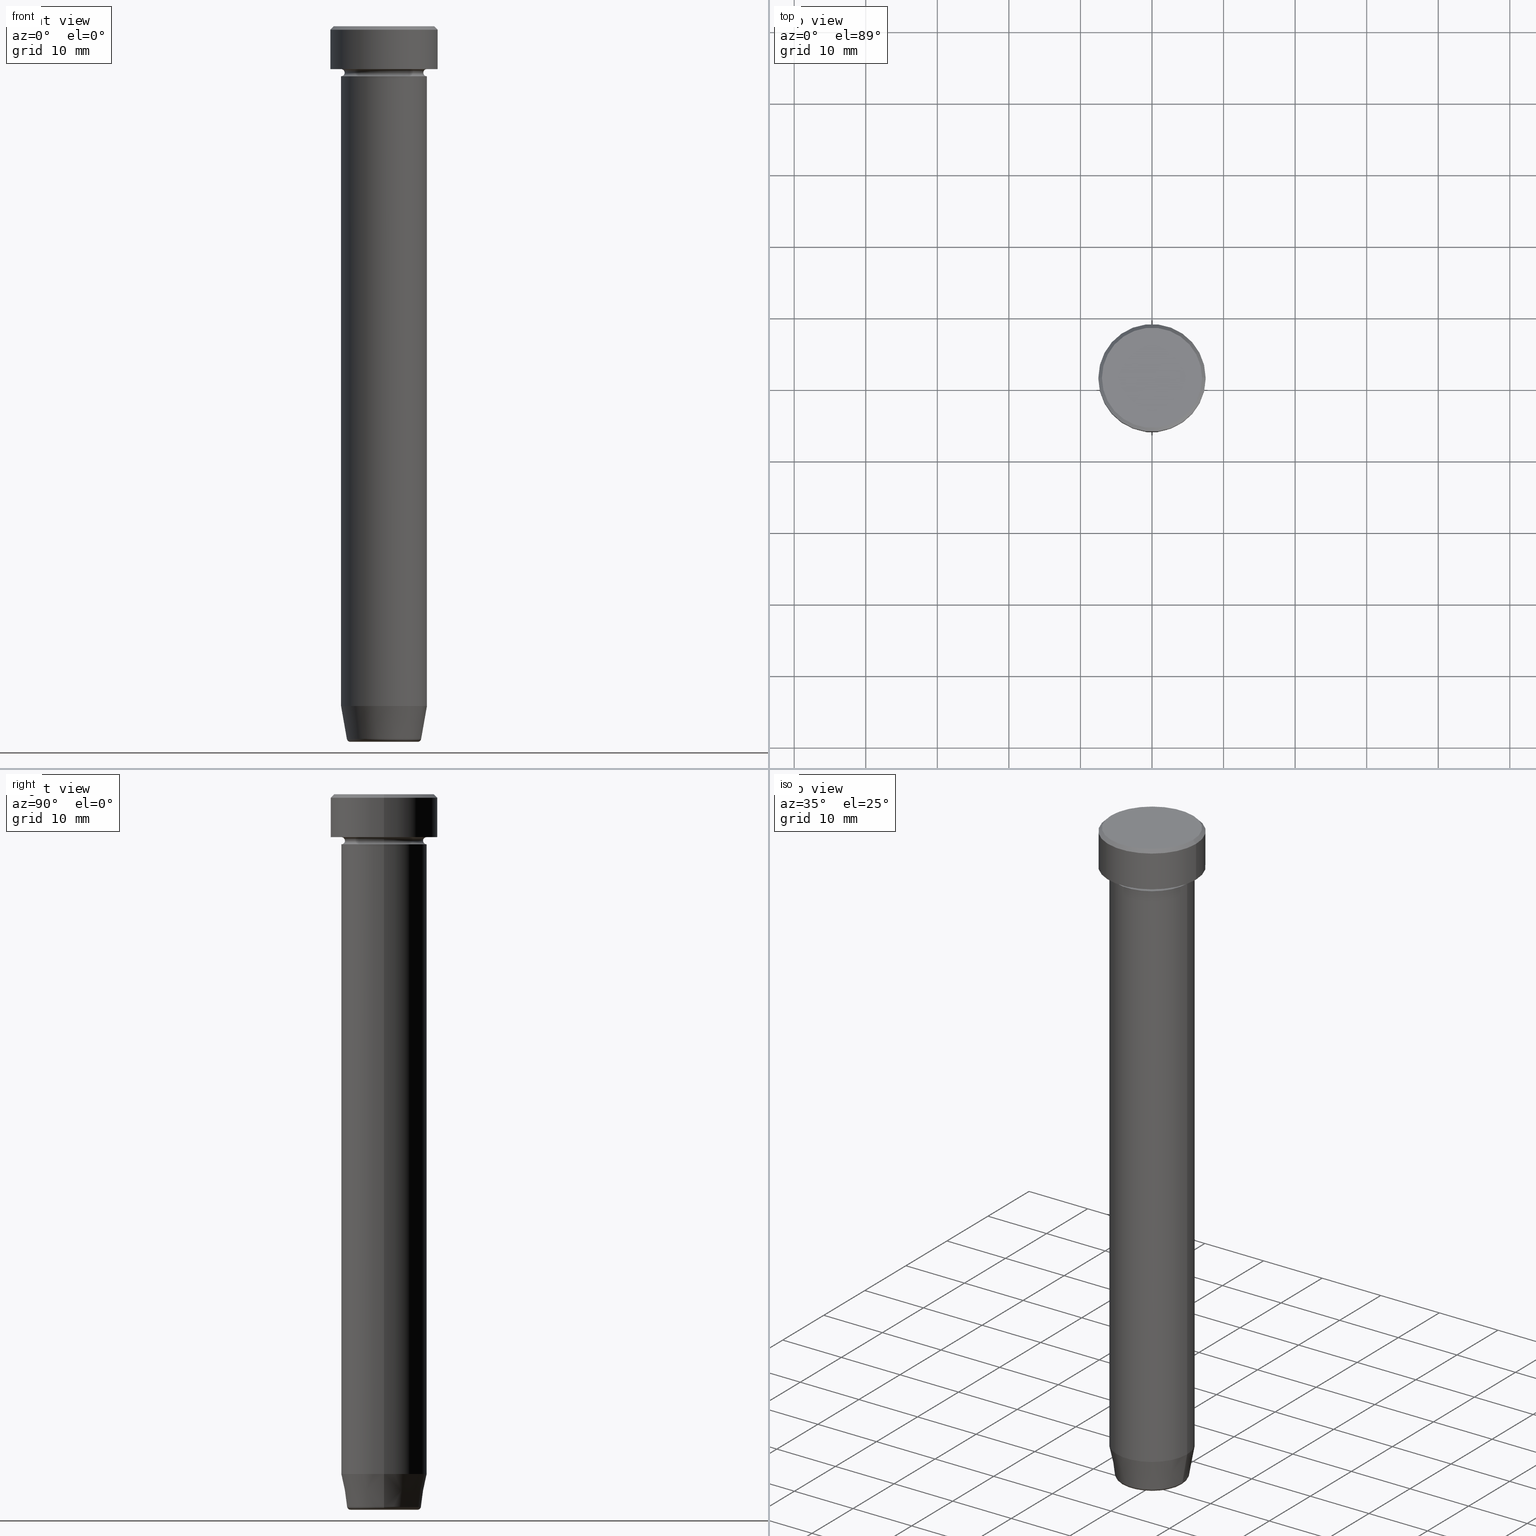
[diagram: canonical four-view strip — front | top / right | iso, engineering-drawing reading convention]
A machine part, canonical four-view strip (front | top / right | iso — engineering-drawing reading convention). The complete STEP part file that produces these views, byte-faithful:
ISO-10303-21;
HEADER;
FILE_DESCRIPTION (( 'STEP AP203' ),
    '1' );
FILE_NAME ('85c9.STEP',
    '2024-01-03T00:07:37',
    ( '' ),
    ( '' ),
    'SwSTEP 2.0',
    'SolidWorks 2019',
    '' );
FILE_SCHEMA (( 'CONFIG_CONTROL_DESIGN' ));
ENDSEC;

DATA;
#1 = AXIS2_PLACEMENT_3D ( 'NONE', #332, #514, #58 ) ;
#2 = FACE_BOUND ( 'NONE', #538, .T. ) ;
#3 = CIRCLE ( 'NONE', #210, 7.500000000000000000 ) ;
#4 = DIRECTION ( 'NONE',  ( 1.000000000000000000, 0.000000000000000000, 0.000000000000000000 ) ) ;
#5 = EDGE_CURVE ( 'NONE', #371, #503, #298, .T. ) ;
#6 = CARTESIAN_POINT ( 'NONE',  ( -4.698815280869031774, 6.055899509126404334E-16, -100.0000000000000000 ) ) ;
#7 = DIRECTION ( 'NONE',  ( -1.000000000000000000, 0.000000000000000000, 0.000000000000000000 ) ) ;
#8 = DIRECTION ( 'NONE',  ( -0.000000000000000000, -0.000000000000000000, 1.000000000000000000 ) ) ;
#9 = DIRECTION ( 'NONE',  ( -0.000000000000000000, -0.000000000000000000, 1.000000000000000000 ) ) ;
#10 = CARTESIAN_POINT ( 'NONE',  ( 0.000000000000000000, 0.000000000000000000, -100.0000000000000000 ) ) ;
#11 = DIRECTION ( 'NONE',  ( -0.000000000000000000, -0.000000000000000000, 1.000000000000000000 ) ) ;
#12 = CIRCLE ( 'NONE', #229, 6.000000000000000000 ) ;
#13 = PERSON_AND_ORGANIZATION ( #454, #110 ) ;
#14 = CARTESIAN_POINT ( 'NONE',  ( -7.500000000000000000, 9.184850993605147944E-16, -0.4999999999999987232 ) ) ;
#15 = APPROVAL ( #530, 'NEUR�EN�' ) ;
#16 = COORDINATED_UNIVERSAL_TIME_OFFSET ( 1, 0, .AHEAD. ) ;
#17 = CARTESIAN_POINT ( 'NONE',  ( 6.000000000000000000, 0.000000000000000000, -95.00000000000000000 ) ) ;
#18 = EDGE_CURVE ( 'NONE', #101, #222, #12, .T. ) ;
#19 = CONICAL_SURFACE ( 'NONE', #336, 5.118365096457672792, 0.1745329251994331976 ) ;
#20 = CARTESIAN_POINT ( 'NONE',  ( 0.000000000000000000, 0.000000000000000000, 0.000000000000000000 ) ) ;
#21 = CC_DESIGN_APPROVAL ( #269, ( #417 ) ) ;
#22 = CIRCLE ( 'NONE', #563, 6.000000000000000000 ) ;
#23 = ORIENTED_EDGE ( 'NONE', *, *, #424, .T. ) ;
#24 = CIRCLE ( 'NONE', #280, 5.191219157375138060 ) ;
#25 = COORDINATED_UNIVERSAL_TIME_OFFSET ( 1, 0, .AHEAD. ) ;
#26 = CARTESIAN_POINT ( 'NONE',  ( 0.000000000000000000, 0.000000000000000000, -7.000000000000000000 ) ) ;
#27 = ORIENTED_EDGE ( 'NONE', *, *, #250, .F. ) ;
#28 = PERSON_AND_ORGANIZATION ( #454, #110 ) ;
#29 = DIRECTION ( 'NONE',  ( -0.000000000000000000, -0.000000000000000000, 1.000000000000000000 ) ) ;
#30 = ORIENTED_EDGE ( 'NONE', *, *, #281, .T. ) ;
#31 = SHAPE_DEFINITION_REPRESENTATION ( #302, #351 ) ;
#32 = CARTESIAN_POINT ( 'NONE',  ( 4.698815280869031774, 0.000000000000000000, -100.0000000000000000 ) ) ;
#33 = VERTEX_POINT ( 'NONE', #428 ) ;
#34 = CLOSED_SHELL ( 'NONE', ( #331, #373, #501, #247, #427, #394, #590, #162, #464, #61, #403, #400, #470 ) ) ;
#35 = CIRCLE ( 'NONE', #498, 7.500000000000000000 ) ;
#36 = CARTESIAN_POINT ( 'NONE',  ( -6.000000000000000000, 7.347880794884119736E-16, 0.000000000000000000 ) ) ;
#37 = ORIENTED_EDGE ( 'NONE', *, *, #116, .T. ) ;
#38 = EDGE_CURVE ( 'NONE', #503, #371, #521, .T. ) ;
#39 = LINE ( 'NONE', #36, #235 ) ;
#40 = ORIENTED_EDGE ( 'NONE', *, *, #102, .T. ) ;
#41 = DIRECTION ( 'NONE',  ( -1.000000000000000000, 0.000000000000000000, 0.000000000000000000 ) ) ;
#42 = ORIENTED_EDGE ( 'NONE', *, *, #505, .T. ) ;
#43 = AXIS2_PLACEMENT_3D ( 'NONE', #261, #29, #528 ) ;
#44 = ADVANCED_FACE ( 'NONE', ( #246 ), #278, .F. ) ;
#45 = CYLINDRICAL_SURFACE ( 'NONE', #522, 7.500000000000000000 ) ;
#46 = ORIENTED_EDGE ( 'NONE', *, *, #38, .F. ) ;
#47 = FACE_OUTER_BOUND ( 'NONE', #597, .T. ) ;
#48 = ORIENTED_EDGE ( 'NONE', *, *, #71, .F. ) ;
#49 = DIRECTION ( 'NONE',  ( -0.000000000000000000, -0.000000000000000000, 1.000000000000000000 ) ) ;
#50 = VERTEX_POINT ( 'NONE', #62 ) ;
#51 = AXIS2_PLACEMENT_3D ( 'NONE', #586, #133, #128 ) ;
#52 = AXIS2_PLACEMENT_3D ( 'NONE', #242, #231, #412 ) ;
#53 = AXIS2_PLACEMENT_3D ( 'NONE', #80, #69, #74 ) ;
#54 = CARTESIAN_POINT ( 'NONE',  ( 6.000000000000000000, 0.000000000000000000, -17.00000000000000000 ) ) ;
#55 = CIRCLE ( 'NONE', #397, 7.000000000000001776 ) ;
#56 = CARTESIAN_POINT ( 'NONE',  ( 0.000000000000000000, 0.000000000000000000, -17.00000000000000000 ) ) ;
#57 = CC_DESIGN_DATE_AND_TIME_ASSIGNMENT ( #491, #77, ( #571 ) ) ;
#58 = DIRECTION ( 'NONE',  ( 1.000000000000000000, 0.000000000000000000, 0.000000000000000000 ) ) ;
#59 = CARTESIAN_POINT ( 'NONE',  ( 7.000000000000001776, 8.878689293818310074E-16, 0.000000000000000000 ) ) ;
#60 = DIRECTION ( 'NONE',  ( -0.000000000000000000, -0.000000000000000000, 1.000000000000000000 ) ) ;
#61 = ADVANCED_FACE ( 'NONE', ( #158 ), #557, .T. ) ;
#62 = CARTESIAN_POINT ( 'NONE',  ( 5.191219157375138060, 0.000000000000000000, -99.58682408883346682 ) ) ;
#63 = CIRCLE ( 'NONE', #320, 5.191219157375138060 ) ;
#64 = VERTEX_POINT ( 'NONE', #515 ) ;
#65 = AXIS2_PLACEMENT_3D ( 'NONE', #175, #273, #185 ) ;
#66 = APPROVAL_DATE_TIME ( #68, #15 ) ;
#67 = DIRECTION ( 'NONE',  ( 1.000000000000000000, 0.000000000000000000, 0.000000000000000000 ) ) ;
#68 = DATE_AND_TIME ( #479, #85 ) ;
#69 = DIRECTION ( 'NONE',  ( 0.000000000000000000, 0.000000000000000000, -1.000000000000000000 ) ) ;
#70 = VERTEX_POINT ( 'NONE', #95 ) ;
#71 = EDGE_CURVE ( 'NONE', #50, #461, #63, .T. ) ;
#72 = CALENDAR_DATE ( 2024, 3, 1 ) ;
#73 = AXIS2_PLACEMENT_3D ( 'NONE', #426, #199, #100 ) ;
#74 = DIRECTION ( 'NONE',  ( 1.000000000000000000, 0.000000000000000000, 0.000000000000000000 ) ) ;
#75 =( GEOMETRIC_REPRESENTATION_CONTEXT ( 3 ) GLOBAL_UNCERTAINTY_ASSIGNED_CONTEXT ( ( #145 ) ) GLOBAL_UNIT_ASSIGNED_CONTEXT ( ( #289, #208, #475 ) ) REPRESENTATION_CONTEXT ( 'NONE', 'WORKASPACE' ) );
#76 = EDGE_LOOP ( 'NONE', ( #572, #40 ) ) ;
#77 = DATE_TIME_ROLE ( 'classification_date' ) ;
#78 = CARTESIAN_POINT ( 'NONE',  ( 0.000000000000000000, 0.000000000000000000, 0.000000000000000000 ) ) ;
#79 = ORIENTED_EDGE ( 'NONE', *, *, #155, .F. ) ;
#80 = CARTESIAN_POINT ( 'NONE',  ( 0.000000000000000000, 0.000000000000000000, -0.4999999999999987232 ) ) ;
#81 = ORIENTED_EDGE ( 'NONE', *, *, #505, .F. ) ;
#82 = DIRECTION ( 'NONE',  ( 0.000000000000000000, 0.000000000000000000, -1.000000000000000000 ) ) ;
#83 = TOROIDAL_SURFACE ( 'NONE', #469, 6.000000000000000000, 0.5000000000000000000 ) ;
#84 = EDGE_LOOP ( 'NONE', ( #376, #529, #526, #120 ) ) ;
#85 = LOCAL_TIME ( 1, 7, 37.00000000000000000, #339 ) ;
#86 = AXIS2_PLACEMENT_3D ( 'NONE', #143, #460, #149 ) ;
#87 = DIRECTION ( 'NONE',  ( -0.000000000000000000, -0.000000000000000000, 1.000000000000000000 ) ) ;
#88 = ORIENTED_EDGE ( 'NONE', *, *, #165, .T. ) ;
#89 = DIRECTION ( 'NONE',  ( -1.000000000000000000, 0.000000000000000000, 0.000000000000000000 ) ) ;
#90 = ORIENTED_EDGE ( 'NONE', *, *, #71, .T. ) ;
#91 = FACE_OUTER_BOUND ( 'NONE', #200, .T. ) ;
#92 = ORIENTED_EDGE ( 'NONE', *, *, #5, .T. ) ;
#93 = ORIENTED_EDGE ( 'NONE', *, *, #189, .T. ) ;
#94 = CARTESIAN_POINT ( 'NONE',  ( 6.000000000000000000, 0.000000000000000000, -17.00000000000000000 ) ) ;
#95 = CARTESIAN_POINT ( 'NONE',  ( -6.000000000000000000, 7.347880794884119736E-16, -95.00000000000000000 ) ) ;
#96 = DIRECTION ( 'NONE',  ( 1.000000000000000000, 0.000000000000000000, 0.000000000000000000 ) ) ;
#97 = ORIENTED_EDGE ( 'NONE', *, *, #490, .F. ) ;
#98 = CONICAL_SURFACE ( 'NONE', #438, 5.118365096457672792, 0.1745329251994331976 ) ;
#99 = AXIS2_PLACEMENT_3D ( 'NONE', #483, #212, #334 ) ;
#100 = DIRECTION ( 'NONE',  ( 1.000000000000000000, 0.000000000000000000, 0.000000000000000000 ) ) ;
#101 = VERTEX_POINT ( 'NONE', #287 ) ;
#102 = EDGE_CURVE ( 'NONE', #589, #485, #198, .T. ) ;
#103 = CARTESIAN_POINT ( 'NONE',  ( -6.000000000000000000, 7.347880794884119736E-16, -6.500000000000000888 ) ) ;
#104 = CARTESIAN_POINT ( 'NONE',  ( 0.000000000000000000, 0.000000000000000000, -17.00000000000000000 ) ) ;
#105 = CC_DESIGN_DATE_AND_TIME_ASSIGNMENT ( #251, #202, ( #216 ) ) ;
#106 = DIRECTION ( 'NONE',  ( 0.000000000000000000, -1.000000000000000000, 0.000000000000000000 ) ) ;
#107 = ORIENTED_EDGE ( 'NONE', *, *, #595, .F. ) ;
#108 = ORIENTED_EDGE ( 'NONE', *, *, #490, .T. ) ;
#109 = TOROIDAL_SURFACE ( 'NONE', #311, 6.000000000000000000, 0.5000000000000000000 ) ;
#110 = ORGANIZATION ( 'NEUR�EN�', 'NEUR�EN�', '' ) ;
#111 = AXIS2_PLACEMENT_3D ( 'NONE', #345, #169, #252 ) ;
#112 = CYLINDRICAL_SURFACE ( 'NONE', #543, 6.000000000000000000 ) ;
#113 = CIRCLE ( 'NONE', #51, 6.000000000000000000 ) ;
#114 = PERSON_AND_ORGANIZATION ( #454, #110 ) ;
#115 = CARTESIAN_POINT ( 'NONE',  ( 7.500000000000000000, 0.000000000000000000, -0.4999999999999987232 ) ) ;
#116 = EDGE_CURVE ( 'NONE', #70, #589, #187, .T. ) ;
#117 = ORIENTED_EDGE ( 'NONE', *, *, #293, .T. ) ;
#118 = PERSON_AND_ORGANIZATION ( #454, #110 ) ;
#119 = DIRECTION ( 'NONE',  ( -0.000000000000000000, -0.000000000000000000, 1.000000000000000000 ) ) ;
#120 = ORIENTED_EDGE ( 'NONE', *, *, #129, .F. ) ;
#121 = SECURITY_CLASSIFICATION_LEVEL ( 'unclassified' ) ;
#122 = DIRECTION ( 'NONE',  ( -0.1736481776669306087, 2.126576849575774688E-17, 0.9848077530122081313 ) ) ;
#123 = ORIENTED_EDGE ( 'NONE', *, *, #579, .F. ) ;
#124 = ADVANCED_FACE ( 'NONE', ( #240 ), #560, .F. ) ;
#125 = LINE ( 'NONE', #575, #182 ) ;
#126 = DIRECTION ( 'NONE',  ( -0.000000000000000000, -0.000000000000000000, 1.000000000000000000 ) ) ;
#127 = ORIENTED_EDGE ( 'NONE', *, *, #384, .F. ) ;
#128 = DIRECTION ( 'NONE',  ( 1.000000000000000000, 0.000000000000000000, 0.000000000000000000 ) ) ;
#129 = EDGE_CURVE ( 'NONE', #549, #583, #284, .T. ) ;
#130 = ORIENTED_EDGE ( 'NONE', *, *, #165, .F. ) ;
#131 = AXIS2_PLACEMENT_3D ( 'NONE', #555, #562, #366 ) ;
#132 = AXIS2_PLACEMENT_3D ( 'NONE', #548, #135, #504 ) ;
#133 = DIRECTION ( 'NONE',  ( -0.000000000000000000, -0.000000000000000000, 1.000000000000000000 ) ) ;
#134 = VERTEX_POINT ( 'NONE', #59 ) ;
#135 = DIRECTION ( 'NONE',  ( -0.000000000000000000, -0.000000000000000000, 1.000000000000000000 ) ) ;
#136 = ORIENTED_EDGE ( 'NONE', *, *, #442, .T. ) ;
#137 = CARTESIAN_POINT ( 'NONE',  ( 0.000000000000000000, 0.000000000000000000, -6.000000000000000000 ) ) ;
#138 = ORIENTED_EDGE ( 'NONE', *, *, #442, .F. ) ;
#139 = LOCAL_TIME ( 1, 7, 37.00000000000000000, #25 ) ;
#140 = CIRCLE ( 'NONE', #43, 6.000000000000000000 ) ;
#141 = TOROIDAL_SURFACE ( 'NONE', #288, 6.000000000000000000, 0.5000000000000000000 ) ;
#142 = EDGE_CURVE ( 'NONE', #296, #197, #474, .T. ) ;
#143 = CARTESIAN_POINT ( 'NONE',  ( 0.000000000000000000, 0.000000000000000000, 0.000000000000000000 ) ) ;
#144 = DIRECTION ( 'NONE',  ( 1.000000000000000000, 0.000000000000000000, 0.000000000000000000 ) ) ;
#145 = UNCERTAINTY_MEASURE_WITH_UNIT (LENGTH_MEASURE( 1.000000000000000082E-05 ), #289, 'distance_accuracy_value', 'NONE');
#146 = EDGE_CURVE ( 'NONE', #300, #50, #429, .T. ) ;
#147 = CARTESIAN_POINT ( 'NONE',  ( 0.000000000000000000, 0.000000000000000000, -100.0000000000000000 ) ) ;
#148 = DIRECTION ( 'NONE',  ( -0.000000000000000000, -0.000000000000000000, 1.000000000000000000 ) ) ;
#149 = DIRECTION ( 'NONE',  ( -1.000000000000000000, 0.000000000000000000, 0.000000000000000000 ) ) ;
#150 = ORIENTED_EDGE ( 'NONE', *, *, #142, .F. ) ;
#151 = APPROVAL_PERSON_ORGANIZATION ( #13, #15, #377 ) ;
#152 = CIRCLE ( 'NONE', #53, 7.500000000000000000 ) ;
#153 = DIRECTION ( 'NONE',  ( 1.000000000000000000, 0.000000000000000000, 0.000000000000000000 ) ) ;
#154 = DIRECTION ( 'NONE',  ( -0.000000000000000000, -0.000000000000000000, 1.000000000000000000 ) ) ;
#155 = EDGE_CURVE ( 'NONE', #64, #220, #125, .T. ) ;
#156 = CARTESIAN_POINT ( 'NONE',  ( 0.000000000000000000, 0.000000000000000000, -99.50000000000000000 ) ) ;
#157 = MANIFOLD_SOLID_BREP ( 'Zkosen�1', #34 ) ;
#158 = FACE_OUTER_BOUND ( 'NONE', #204, .T. ) ;
#159 = DIRECTION ( 'NONE',  ( -0.000000000000000000, -0.000000000000000000, 1.000000000000000000 ) ) ;
#160 = AXIS2_PLACEMENT_3D ( 'NONE', #362, #465, #370 ) ;
#161 = PERSON_AND_ORGANIZATION ( #454, #110 ) ;
#162 = ADVANCED_FACE ( 'NONE', ( #535 ), #291, .T. ) ;
#163 = DIRECTION ( 'NONE',  ( -1.000000000000000000, -1.224646799147351482E-16, 0.000000000000000000 ) ) ;
#164 = AXIS2_PLACEMENT_3D ( 'NONE', #249, #166, #203 ) ;
#165 = EDGE_CURVE ( 'NONE', #197, #220, #152, .T. ) ;
#166 = DIRECTION ( 'NONE',  ( -0.000000000000000000, -0.000000000000000000, 1.000000000000000000 ) ) ;
#167 = APPROVAL_DATE_TIME ( #435, #269 ) ;
#168 = MANIFOLD_SOLID_BREP ( 'Zaoblit4', #237 ) ;
#169 = DIRECTION ( 'NONE',  ( 0.000000000000000000, -1.000000000000000000, 0.000000000000000000 ) ) ;
#170 = EDGE_CURVE ( 'NONE', #358, #549, #489, .T. ) ;
#171 = PERSON_AND_ORGANIZATION ( #454, #110 ) ;
#172 = CARTESIAN_POINT ( 'NONE',  ( -7.500000000000000000, 9.184850993605147944E-16, -6.000000000000000000 ) ) ;
#173 = VECTOR ( 'NONE', #301, 1000.000000000000000 ) ;
#174 = EDGE_CURVE ( 'NONE', #184, #70, #140, .T. ) ;
#175 = CARTESIAN_POINT ( 'NONE',  ( 0.000000000000000000, 0.000000000000000000, -100.0000000000000000 ) ) ;
#176 = ORIENTED_EDGE ( 'NONE', *, *, #116, .F. ) ;
#177 = DIRECTION ( 'NONE',  ( -0.000000000000000000, -1.000000000000000000, -0.000000000000000000 ) ) ;
#178 = ORIENTED_EDGE ( 'NONE', *, *, #18, .T. ) ;
#179 = CARTESIAN_POINT ( 'NONE',  ( 0.000000000000000000, 0.000000000000000000, 0.000000000000000000 ) ) ;
#180 = AXIS2_PLACEMENT_3D ( 'NONE', #195, #421, #193 ) ;
#181 = ORIENTED_EDGE ( 'NONE', *, *, #304, .F. ) ;
#182 = VECTOR ( 'NONE', #292, 1000.000000000000114 ) ;
#183 = DIRECTION ( 'NONE',  ( 1.000000000000000000, 0.000000000000000000, 0.000000000000000000 ) ) ;
#184 = VERTEX_POINT ( 'NONE', #17 ) ;
#185 = DIRECTION ( 'NONE',  ( 1.000000000000000000, 0.000000000000000000, 0.000000000000000000 ) ) ;
#186 = DIRECTION ( 'NONE',  ( 1.224646799147353207E-16, 1.000000000000000000, 0.000000000000000000 ) ) ;
#187 = LINE ( 'NONE', #418, #584 ) ;
#188 = VECTOR ( 'NONE', #511, 999.9999999999998863 ) ;
#189 = EDGE_CURVE ( 'NONE', #225, #220, #380, .T. ) ;
#190 = AXIS2_PLACEMENT_3D ( 'NONE', #179, #594, #183 ) ;
#191 = FACE_OUTER_BOUND ( 'NONE', #488, .T. ) ;
#192 = ORIENTED_EDGE ( 'NONE', *, *, #206, .F. ) ;
#193 = DIRECTION ( 'NONE',  ( 1.000000000000000000, 0.000000000000000000, 0.000000000000000000 ) ) ;
#194 = CARTESIAN_POINT ( 'NONE',  ( 0.000000000000000000, 0.000000000000000000, -99.58682408883346682 ) ) ;
#195 = CARTESIAN_POINT ( 'NONE',  ( 0.000000000000000000, 0.000000000000000000, -99.50000000000000000 ) ) ;
#196 = EDGE_CURVE ( 'NONE', #444, #461, #478, .T. ) ;
#197 = VERTEX_POINT ( 'NONE', #115 ) ;
#198 = CIRCLE ( 'NONE', #264, 6.000000000000000000 ) ;
#199 = DIRECTION ( 'NONE',  ( -0.000000000000000000, -0.000000000000000000, 1.000000000000000000 ) ) ;
#200 = EDGE_LOOP ( 'NONE', ( #596, #93, #136, #150 ) ) ;
#201 = FACE_OUTER_BOUND ( 'NONE', #274, .T. ) ;
#202 = DATE_TIME_ROLE ( 'creation_date' ) ;
#203 = DIRECTION ( 'NONE',  ( 1.000000000000000000, 0.000000000000000000, 0.000000000000000000 ) ) ;
#204 = EDGE_LOOP ( 'NONE', ( #181, #536, #268, #123 ) ) ;
#205 = CIRCLE ( 'NONE', #519, 0.5000000000000004441 ) ;
#206 = EDGE_CURVE ( 'NONE', #461, #70, #520, .T. ) ;
#207 = APPROVAL_PERSON_ORGANIZATION ( #387, #269, #574 ) ;
#208 =( NAMED_UNIT ( * ) PLANE_ANGLE_UNIT ( ) SI_UNIT ( $, .RADIAN. ) );
#209 = DIRECTION ( 'NONE',  ( 1.000000000000000000, 0.000000000000000000, 0.000000000000000000 ) ) ;
#210 = AXIS2_PLACEMENT_3D ( 'NONE', #423, #553, #564 ) ;
#211 = ORIENTED_EDGE ( 'NONE', *, *, #146, .T. ) ;
#212 = DIRECTION ( 'NONE',  ( 0.000000000000000000, 0.000000000000000000, 1.000000000000000000 ) ) ;
#213 = CARTESIAN_POINT ( 'NONE',  ( 0.000000000000000000, 0.000000000000000000, -99.58682408883346682 ) ) ;
#214 = APPROVAL_STATUS ( 'not_yet_approved' ) ;
#215 = DIRECTION ( 'NONE',  ( 1.000000000000000000, 0.000000000000000000, 0.000000000000000000 ) ) ;
#216 = PRODUCT_DEFINITION ( 'NEZN�M�', '', #417, #457 ) ;
#217 = DATE_AND_TIME ( #445, #256 ) ;
#218 = DIRECTION ( 'NONE',  ( -1.000000000000000000, 0.000000000000000000, 0.000000000000000000 ) ) ;
#219 = CONICAL_SURFACE ( 'NONE', #86, 7.000000000000001776, 0.7853981633974473908 ) ;
#220 = VERTEX_POINT ( 'NONE', #14 ) ;
#221 = CARTESIAN_POINT ( 'NONE',  ( 0.000000000000000000, 0.000000000000000000, -6.500000000000000888 ) ) ;
#222 = VERTEX_POINT ( 'NONE', #494 ) ;
#223 = ADVANCED_FACE ( 'NONE', ( #341 ), #112, .T. ) ;
#224 = CARTESIAN_POINT ( 'NONE',  ( 0.000000000000000000, 6.000000000000000000, -17.00000000000000000 ) ) ;
#225 = VERTEX_POINT ( 'NONE', #172 ) ;
#226 = ADVANCED_FACE ( 'NONE', ( #201 ), #378, .T. ) ;
#227 = DIRECTION ( 'NONE',  ( -0.000000000000000000, -0.000000000000000000, 1.000000000000000000 ) ) ;
#228 = ORIENTED_EDGE ( 'NONE', *, *, #290, .F. ) ;
#229 = AXIS2_PLACEMENT_3D ( 'NONE', #565, #279, #7 ) ;
#230 = FACE_OUTER_BOUND ( 'NONE', #399, .T. ) ;
#231 = DIRECTION ( 'NONE',  ( 0.000000000000000000, -0.000000000000000000, 1.000000000000000000 ) ) ;
#232 = EDGE_LOOP ( 'NONE', ( #271, #42, #138, #79 ) ) ;
#233 = CARTESIAN_POINT ( 'NONE',  ( 7.000000000000001776, 8.572527594031474176E-16, 0.000000000000000000 ) ) ;
#234 = CARTESIAN_POINT ( 'NONE',  ( 0.000000000000000000, 0.000000000000000000, 0.000000000000000000 ) ) ;
#235 = VECTOR ( 'NONE', #545, 1000.000000000000000 ) ;
#236 = CC_DESIGN_APPROVAL ( #15, ( #216 ) ) ;
#237 = CLOSED_SHELL ( 'NONE', ( #481, #524, #223, #124, #226, #550, #44, #566 ) ) ;
#238 = AXIS2_PLACEMENT_3D ( 'NONE', #410, #506, #41 ) ;
#239 = LINE ( 'NONE', #233, #382 ) ;
#240 = FACE_OUTER_BOUND ( 'NONE', #76, .T. ) ;
#241 = EDGE_CURVE ( 'NONE', #583, #33, #22, .T. ) ;
#242 = CARTESIAN_POINT ( 'NONE',  ( 0.000000000000000000, 0.000000000000000000, 0.000000000000000000 ) ) ;
#243 = ORIENTED_EDGE ( 'NONE', *, *, #142, .T. ) ;
#244 = DIRECTION ( 'NONE',  ( -1.000000000000000000, 1.224646799147351482E-16, 0.000000000000000000 ) ) ;
#245 = CARTESIAN_POINT ( 'NONE',  ( 7.500000000000000000, 0.000000000000000000, 0.000000000000000000 ) ) ;
#246 = FACE_OUTER_BOUND ( 'NONE', #451, .T. ) ;
#247 = ADVANCED_FACE ( 'NONE', ( #260 ), #440, .T. ) ;
#248 = PERSON_AND_ORGANIZATION_ROLE ( 'design_owner' ) ;
#249 = CARTESIAN_POINT ( 'NONE',  ( 0.000000000000000000, 0.000000000000000000, -17.00000000000000000 ) ) ;
#250 = EDGE_CURVE ( 'NONE', #549, #358, #593, .T. ) ;
#251 = DATE_AND_TIME ( #72, #372 ) ;
#252 = DIRECTION ( 'NONE',  ( 0.000000000000000000, 0.000000000000000000, -1.000000000000000000 ) ) ;
#253 = EDGE_LOOP ( 'NONE', ( #192, #30, #108, #342 ) ) ;
#254 = CIRCLE ( 'NONE', #573, 4.698815280869031774 ) ;
#255 = EDGE_CURVE ( 'NONE', #371, #101, #282, .T. ) ;
#256 = LOCAL_TIME ( 1, 7, 37.00000000000000000, #581 ) ;
#257 = MECHANICAL_CONTEXT ( 'NONE', #409, 'mechanical' ) ;
#258 = CARTESIAN_POINT ( 'NONE',  ( 0.000000000000000000, 0.000000000000000000, 0.000000000000000000 ) ) ;
#259 = CC_DESIGN_PERSON_AND_ORGANIZATION_ASSIGNMENT ( #161, #523, ( #417 ) ) ;
#260 = FACE_OUTER_BOUND ( 'NONE', #84, .T. ) ;
#261 = CARTESIAN_POINT ( 'NONE',  ( 0.000000000000000000, 0.000000000000000000, -95.00000000000000000 ) ) ;
#262 = AXIS2_PLACEMENT_3D ( 'NONE', #156, #60, #153 ) ;
#263 = DIRECTION ( 'NONE',  ( -0.000000000000000000, -0.000000000000000000, 1.000000000000000000 ) ) ;
#264 = AXIS2_PLACEMENT_3D ( 'NONE', #56, #369, #322 ) ;
#265 = VECTOR ( 'NONE', #263, 1000.000000000000000 ) ;
#266 = ORIENTED_EDGE ( 'NONE', *, *, #196, .F. ) ;
#267 = FACE_OUTER_BOUND ( 'NONE', #286, .T. ) ;
#268 = ORIENTED_EDGE ( 'NONE', *, *, #129, .T. ) ;
#269 = APPROVAL ( #379, 'NEUR�EN�' ) ;
#270 = DIRECTION ( 'NONE',  ( 0.000000000000000000, 0.000000000000000000, -1.000000000000000000 ) ) ;
#271 = ORIENTED_EDGE ( 'NONE', *, *, #359, .F. ) ;
#272 = EDGE_CURVE ( 'NONE', #225, #296, #35, .T. ) ;
#273 = DIRECTION ( 'NONE',  ( 0.000000000000000000, 0.000000000000000000, -1.000000000000000000 ) ) ;
#274 = EDGE_LOOP ( 'NONE', ( #176, #23, #338, #540 ) ) ;
#275 = FACE_OUTER_BOUND ( 'NONE', #381, .T. ) ;
#276 = ORIENTED_EDGE ( 'NONE', *, *, #559, .F. ) ;
#277 = DIRECTION ( 'NONE',  ( -0.000000000000000000, -0.000000000000000000, 1.000000000000000000 ) ) ;
#278 = PLANE ( 'NONE',  #585 ) ;
#279 = DIRECTION ( 'NONE',  ( -0.000000000000000000, -0.000000000000000000, 1.000000000000000000 ) ) ;
#280 = AXIS2_PLACEMENT_3D ( 'NONE', #213, #389, #218 ) ;
#281 = EDGE_CURVE ( 'NONE', #461, #50, #24, .T. ) ;
#282 = CIRCLE ( 'NONE', #356, 0.5000000000000004441 ) ;
#283 = CARTESIAN_POINT ( 'NONE',  ( -5.500000000000000000, 7.041719095097280880E-16, -6.500000000000000888 ) ) ;
#284 = LINE ( 'NONE', #472, #534 ) ;
#285 = DIRECTION ( 'NONE',  ( 1.000000000000000000, 0.000000000000000000, 0.000000000000000000 ) ) ;
#286 = EDGE_LOOP ( 'NONE', ( #276, #333, #580, #306 ) ) ;
#287 = CARTESIAN_POINT ( 'NONE',  ( 6.000000000000000000, 7.347880794884119736E-16, -6.000000000000000000 ) ) ;
#288 = AXIS2_PLACEMENT_3D ( 'NONE', #308, #537, #499 ) ;
#289 =( LENGTH_UNIT ( ) NAMED_UNIT ( * ) SI_UNIT ( .MILLI., .METRE. ) );
#290 = EDGE_CURVE ( 'NONE', #503, #222, #205, .T. ) ;
#291 = CYLINDRICAL_SURFACE ( 'NONE', #513, 7.500000000000000000 ) ;
#292 = DIRECTION ( 'NONE',  ( -0.7071067811865469066, 0.000000000000000000, -0.7071067811865481278 ) ) ;
#293 = EDGE_CURVE ( 'NONE', #444, #300, #415, .T. ) ;
#294 = PERSON_AND_ORGANIZATION_ROLE ( 'design_supplier' ) ;
#295 = DIRECTION ( 'NONE',  ( 1.000000000000000000, 0.000000000000000000, 0.000000000000000000 ) ) ;
#296 = VERTEX_POINT ( 'NONE', #446 ) ;
#297 = PERSON_AND_ORGANIZATION_ROLE ( 'classification_officer' ) ;
#298 = CIRCLE ( 'NONE', #408, 5.500000000000000000 ) ;
#299 = CARTESIAN_POINT ( 'NONE',  ( 0.000000000000000000, 0.000000000000000000, -17.00000000000000000 ) ) ;
#300 = VERTEX_POINT ( 'NONE', #32 ) ;
#301 = DIRECTION ( 'NONE',  ( -0.000000000000000000, -0.000000000000000000, 1.000000000000000000 ) ) ;
#302 = PRODUCT_DEFINITION_SHAPE ( 'NONE', 'NONE',  #216 ) ;
#303 = ORIENTED_EDGE ( 'NONE', *, *, #155, .T. ) ;
#304 = EDGE_CURVE ( 'NONE', #358, #33, #39, .T. ) ;
#305 = DIRECTION ( 'NONE',  ( -0.000000000000000000, -0.000000000000000000, 1.000000000000000000 ) ) ;
#306 = ORIENTED_EDGE ( 'NONE', *, *, #241, .T. ) ;
#307 = AXIS2_PLACEMENT_3D ( 'NONE', #224, #348, #551 ) ;
#308 = CARTESIAN_POINT ( 'NONE',  ( 0.000000000000000000, 0.000000000000000000, -6.500000000000000888 ) ) ;
#309 = AXIS2_PLACEMENT_3D ( 'NONE', #104, #422, #512 ) ;
#310 = PRODUCT_RELATED_PRODUCT_CATEGORY ( 'detail', '', ( #395 ) ) ;
#311 = AXIS2_PLACEMENT_3D ( 'NONE', #221, #82, #401 ) ;
#312 = ORIENTED_EDGE ( 'NONE', *, *, #414, .F. ) ;
#313 = CARTESIAN_POINT ( 'NONE',  ( 0.000000000000000000, 0.000000000000000000, 0.000000000000000000 ) ) ;
#314 = ORIENTED_EDGE ( 'NONE', *, *, #281, .F. ) ;
#315 = CARTESIAN_POINT ( 'NONE',  ( 5.500000000000000000, 0.000000000000000000, -6.500000000000000888 ) ) ;
#316 = ORIENTED_EDGE ( 'NONE', *, *, #146, .F. ) ;
#317 = EDGE_CURVE ( 'NONE', #222, #101, #496, .T. ) ;
#318 = CARTESIAN_POINT ( 'NONE',  ( 0.000000000000000000, 0.000000000000000000, -100.0000000000000000 ) ) ;
#319 = ORIENTED_EDGE ( 'NONE', *, *, #196, .T. ) ;
#320 = AXIS2_PLACEMENT_3D ( 'NONE', #194, #9, #325 ) ;
#321 = DIRECTION ( 'NONE',  ( 1.000000000000000000, 0.000000000000000000, 0.000000000000000000 ) ) ;
#322 = DIRECTION ( 'NONE',  ( 1.000000000000000000, 0.000000000000000000, 0.000000000000000000 ) ) ;
#323 = FACE_OUTER_BOUND ( 'NONE', #411, .T. ) ;
#324 = EDGE_CURVE ( 'NONE', #184, #485, #398, .T. ) ;
#325 = DIRECTION ( 'NONE',  ( -1.000000000000000000, 0.000000000000000000, 0.000000000000000000 ) ) ;
#326 = LINE ( 'NONE', #329, #188 ) ;
#327 = CARTESIAN_POINT ( 'NONE',  ( 0.000000000000000000, 6.123233995736767663E-15, -100.0000000000000000 ) ) ;
#328 = TOROIDAL_SURFACE ( 'NONE', #180, 4.698815280869031774, 0.5000000000000000000 ) ;
#329 = CARTESIAN_POINT ( 'NONE',  ( 5.118365096457672792, 0.000000000000000000, -100.0000000000000000 ) ) ;
#330 = DIRECTION ( 'NONE',  ( -0.000000000000000000, -0.000000000000000000, 1.000000000000000000 ) ) ;
#331 = ADVANCED_FACE ( 'NONE', ( #455 ), #554, .T. ) ;
#332 = CARTESIAN_POINT ( 'NONE',  ( 0.000000000000000000, 0.000000000000000000, -6.500000000000000888 ) ) ;
#333 = ORIENTED_EDGE ( 'NONE', *, *, #5, .F. ) ;
#334 = DIRECTION ( 'NONE',  ( 1.000000000000000000, 0.000000000000000000, 0.000000000000000000 ) ) ;
#335 = CARTESIAN_POINT ( 'NONE',  ( 0.000000000000000000, 0.000000000000000000, 0.000000000000000000 ) ) ;
#336 = AXIS2_PLACEMENT_3D ( 'NONE', #10, #8, #96 ) ;
#337 = CARTESIAN_POINT ( 'NONE',  ( 0.000000000000000000, 0.000000000000000000, -6.000000000000000000 ) ) ;
#338 = ORIENTED_EDGE ( 'NONE', *, *, #324, .T. ) ;
#339 = COORDINATED_UNIVERSAL_TIME_OFFSET ( 1, 0, .AHEAD. ) ;
#340 = DIRECTION ( 'NONE',  ( -1.224646799147353207E-16, 1.000000000000000000, 0.000000000000000000 ) ) ;
#341 = FACE_OUTER_BOUND ( 'NONE', #402, .T. ) ;
#342 = ORIENTED_EDGE ( 'NONE', *, *, #424, .F. ) ;
#343 = PERSON_AND_ORGANIZATION_ROLE ( 'creator' ) ;
#344 = VECTOR ( 'NONE', #392, 1000.000000000000000 ) ;
#345 = CARTESIAN_POINT ( 'NONE',  ( 4.698815280869031774, 0.000000000000000000, -99.50000000000000000 ) ) ;
#346 = DIRECTION ( 'NONE',  ( 1.000000000000000000, 0.000000000000000000, 0.000000000000000000 ) ) ;
#347 = ORIENTED_EDGE ( 'NONE', *, *, #293, .F. ) ;
#348 = DIRECTION ( 'NONE',  ( 0.000000000000000000, 0.000000000000000000, -1.000000000000000000 ) ) ;
#349 = ORIENTED_EDGE ( 'NONE', *, *, #272, .F. ) ;
#350 = CIRCLE ( 'NONE', #406, 0.5000000000000004441 ) ;
#351 = ADVANCED_BREP_SHAPE_REPRESENTATION ( '85c9', ( #157, #168, #99 ), #75 ) ;
#352 = APPROVAL_PERSON_ORGANIZATION ( #28, #546, #391 ) ;
#353 = CARTESIAN_POINT ( 'NONE',  ( 6.000000000000000000, 0.000000000000000000, 0.000000000000000000 ) ) ;
#354 = AXIS2_PLACEMENT_3D ( 'NONE', #78, #159, #436 ) ;
#355 = EDGE_CURVE ( 'NONE', #300, #444, #254, .T. ) ;
#356 = AXIS2_PLACEMENT_3D ( 'NONE', #570, #340, #163 ) ;
#357 = CARTESIAN_POINT ( 'NONE',  ( -6.000000000000000000, 0.000000000000000000, -6.500000000000000888 ) ) ;
#358 = VERTEX_POINT ( 'NONE', #360 ) ;
#359 = EDGE_CURVE ( 'NONE', #134, #64, #55, .T. ) ;
#360 = CARTESIAN_POINT ( 'NONE',  ( -6.000000000000000000, 7.347880794884119736E-16, -17.00000000000000000 ) ) ;
#361 = ORIENTED_EDGE ( 'NONE', *, *, #255, .T. ) ;
#362 = CARTESIAN_POINT ( 'NONE',  ( 0.000000000000000000, 7.500000000000000000, -6.000000000000000000 ) ) ;
#363 = EDGE_LOOP ( 'NONE', ( #46, #592, #517, #107 ) ) ;
#364 = CIRCLE ( 'NONE', #569, 7.500000000000000000 ) ;
#365 = FACE_OUTER_BOUND ( 'NONE', #434, .T. ) ;
#366 = DIRECTION ( 'NONE',  ( 1.000000000000000000, 0.000000000000000000, 0.000000000000000000 ) ) ;
#367 = EDGE_CURVE ( 'NONE', #296, #225, #364, .T. ) ;
#368 = DIRECTION ( 'NONE',  ( 0.7071067811865469066, 8.659560562354925463E-17, -0.7071067811865481278 ) ) ;
#369 = DIRECTION ( 'NONE',  ( -0.000000000000000000, -0.000000000000000000, 1.000000000000000000 ) ) ;
#370 = DIRECTION ( 'NONE',  ( -1.000000000000000000, 0.000000000000000000, -0.000000000000000000 ) ) ;
#371 = VERTEX_POINT ( 'NONE', #315 ) ;
#372 = LOCAL_TIME ( 1, 7, 37.00000000000000000, #16 ) ;
#373 = ADVANCED_FACE ( 'NONE', ( #230 ), #109, .F. ) ;
#374 = AXIS2_PLACEMENT_3D ( 'NONE', #578, #582, #531 ) ;
#375 = CARTESIAN_POINT ( 'NONE',  ( 6.000000000000000000, 0.000000000000000000, -7.000000000000000000 ) ) ;
#376 = ORIENTED_EDGE ( 'NONE', *, *, #250, .T. ) ;
#377 = APPROVAL_ROLE ( '' ) ;
#378 = CYLINDRICAL_SURFACE ( 'NONE', #354, 6.000000000000000000 ) ;
#379 = APPROVAL_STATUS ( 'not_yet_approved' ) ;
#380 = LINE ( 'NONE', #525, #173 ) ;
#381 = EDGE_LOOP ( 'NONE', ( #459, #386 ) ) ;
#382 = VECTOR ( 'NONE', #368, 1000.000000000000114 ) ;
#383 = CIRCLE ( 'NONE', #132, 6.000000000000000000 ) ;
#384 = EDGE_CURVE ( 'NONE', #485, #589, #113, .T. ) ;
#385 = DIRECTION ( 'NONE',  ( -0.000000000000000000, -0.000000000000000000, 1.000000000000000000 ) ) ;
#386 = ORIENTED_EDGE ( 'NONE', *, *, #359, .T. ) ;
#387 = PERSON_AND_ORGANIZATION ( #454, #110 ) ;
#388 = CC_DESIGN_PERSON_AND_ORGANIZATION_ASSIGNMENT ( #118, #294, ( #417 ) ) ;
#389 = DIRECTION ( 'NONE',  ( -0.000000000000000000, -0.000000000000000000, 1.000000000000000000 ) ) ;
#390 = ORIENTED_EDGE ( 'NONE', *, *, #170, .F. ) ;
#391 = APPROVAL_ROLE ( '' ) ;
#392 = DIRECTION ( 'NONE',  ( -0.000000000000000000, -0.000000000000000000, 1.000000000000000000 ) ) ;
#393 = ORIENTED_EDGE ( 'NONE', *, *, #290, .T. ) ;
#394 = ADVANCED_FACE ( 'NONE', ( #588 ), #502, .T. ) ;
#395 = PRODUCT ( '85c9', '85c9', '', ( #257 ) ) ;
#396 = AXIS2_PLACEMENT_3D ( 'NONE', #299, #492, #215 ) ;
#397 = AXIS2_PLACEMENT_3D ( 'NONE', #313, #87, #450 ) ;
#398 = LINE ( 'NONE', #353, #265 ) ;
#399 = EDGE_LOOP ( 'NONE', ( #425, #361, #405, #228 ) ) ;
#400 = ADVANCED_FACE ( 'NONE', ( #407 ), #141, .F. ) ;
#401 = DIRECTION ( 'NONE',  ( -1.000000000000000000, 0.000000000000000000, 0.000000000000000000 ) ) ;
#402 = EDGE_LOOP ( 'NONE', ( #576, #37, #127, #456 ) ) ;
#403 = ADVANCED_FACE ( 'NONE', ( #267 ), #83, .F. ) ;
#404 = CARTESIAN_POINT ( 'NONE',  ( 0.000000000000000000, 0.000000000000000000, -6.500000000000000888 ) ) ;
#405 = ORIENTED_EDGE ( 'NONE', *, *, #317, .F. ) ;
#406 = AXIS2_PLACEMENT_3D ( 'NONE', #103, #186, #244 ) ;
#407 = FACE_OUTER_BOUND ( 'NONE', #508, .T. ) ;
#408 = AXIS2_PLACEMENT_3D ( 'NONE', #463, #330, #4 ) ;
#409 = APPLICATION_CONTEXT ( 'configuration controlled 3d designs of mechanical parts and assemblies' ) ;
#410 = CARTESIAN_POINT ( 'NONE',  ( 0.000000000000000000, 0.000000000000000000, 0.000000000000000000 ) ) ;
#411 = EDGE_LOOP ( 'NONE', ( #547, #349 ) ) ;
#412 = DIRECTION ( 'NONE',  ( 1.000000000000000000, 0.000000000000000000, 0.000000000000000000 ) ) ;
#413 = ORIENTED_EDGE ( 'NONE', *, *, #206, .T. ) ;
#414 = EDGE_CURVE ( 'NONE', #64, #134, #449, .T. ) ;
#415 = CIRCLE ( 'NONE', #65, 4.698815280869031774 ) ;
#416 = CARTESIAN_POINT ( 'NONE',  ( 0.000000000000000000, 0.000000000000000000, 0.000000000000000000 ) ) ;
#417 = PRODUCT_DEFINITION_FORMATION_WITH_SPECIFIED_SOURCE ( 'LIBOVOLN�', '', #395, .NOT_KNOWN. ) ;
#418 = CARTESIAN_POINT ( 'NONE',  ( -6.000000000000000000, 7.347880794884119736E-16, 0.000000000000000000 ) ) ;
#419 = AXIS2_PLACEMENT_3D ( 'NONE', #458, #305, #89 ) ;
#420 = CC_DESIGN_PERSON_AND_ORGANIZATION_ASSIGNMENT ( #171, #343, ( #216 ) ) ;
#421 = DIRECTION ( 'NONE',  ( -0.000000000000000000, -0.000000000000000000, 1.000000000000000000 ) ) ;
#422 = DIRECTION ( 'NONE',  ( 0.000000000000000000, 0.000000000000000000, -1.000000000000000000 ) ) ;
#423 = CARTESIAN_POINT ( 'NONE',  ( 0.000000000000000000, 0.000000000000000000, -0.4999999999999987232 ) ) ;
#424 = EDGE_CURVE ( 'NONE', #70, #184, #383, .T. ) ;
#425 = ORIENTED_EDGE ( 'NONE', *, *, #38, .T. ) ;
#426 = CARTESIAN_POINT ( 'NONE',  ( 0.000000000000000000, 0.000000000000000000, -7.000000000000000000 ) ) ;
#427 = ADVANCED_FACE ( 'NONE', ( #91 ), #45, .T. ) ;
#428 = CARTESIAN_POINT ( 'NONE',  ( -6.000000000000000000, 7.347880794884119736E-16, -7.000000000000000000 ) ) ;
#429 = CIRCLE ( 'NONE', #111, 0.5000000000000004441 ) ;
#430 = APPLICATION_PROTOCOL_DEFINITION ( 'international standard', 'config_control_design', 1994, #452 ) ;
#431 = DIRECTION ( 'NONE',  ( 0.000000000000000000, -0.000000000000000000, 1.000000000000000000 ) ) ;
#432 = DIRECTION ( 'NONE',  ( 0.000000000000000000, 0.000000000000000000, -1.000000000000000000 ) ) ;
#433 = DIRECTION ( 'NONE',  ( -0.000000000000000000, -0.000000000000000000, 1.000000000000000000 ) ) ;
#434 = EDGE_LOOP ( 'NONE', ( #90, #413, #509, #97 ) ) ;
#435 = DATE_AND_TIME ( #527, #542 ) ;
#436 = DIRECTION ( 'NONE',  ( 1.000000000000000000, 0.000000000000000000, 0.000000000000000000 ) ) ;
#437 = ORIENTED_EDGE ( 'NONE', *, *, #317, .T. ) ;
#438 = AXIS2_PLACEMENT_3D ( 'NONE', #147, #277, #285 ) ;
#439 = APPLICATION_PROTOCOL_DEFINITION ( 'international standard', 'config_control_design', 1994, #409 ) ;
#440 = CYLINDRICAL_SURFACE ( 'NONE', #544, 6.000000000000000000 ) ;
#441 = ORIENTED_EDGE ( 'NONE', *, *, #189, .F. ) ;
#442 = EDGE_CURVE ( 'NONE', #220, #197, #3, .T. ) ;
#443 = DIRECTION ( 'NONE',  ( -0.000000000000000000, -0.000000000000000000, 1.000000000000000000 ) ) ;
#444 = VERTEX_POINT ( 'NONE', #6 ) ;
#445 = CALENDAR_DATE ( 2024, 3, 1 ) ;
#446 = CARTESIAN_POINT ( 'NONE',  ( 7.500000000000000000, 0.000000000000000000, -6.000000000000000000 ) ) ;
#447 = TOROIDAL_SURFACE ( 'NONE', #262, 4.698815280869031774, 0.5000000000000000000 ) ;
#448 = AXIS2_PLACEMENT_3D ( 'NONE', #234, #148, #144 ) ;
#449 = CIRCLE ( 'NONE', #190, 7.000000000000001776 ) ;
#450 = DIRECTION ( 'NONE',  ( 1.000000000000000000, 0.000000000000000000, 0.000000000000000000 ) ) ;
#451 = EDGE_LOOP ( 'NONE', ( #552, #117 ) ) ;
#452 = APPLICATION_CONTEXT ( 'configuration controlled 3d designs of mechanical parts and assemblies' ) ;
#453 = EDGE_LOOP ( 'NONE', ( #441, #482, #243, #88 ) ) ;
#454 = PERSON ( 'NEUR�EN�', 'NEUR�EN�', 'NEUR�EN�', ('NEUR�EN�'), ('NEUR�EN�'), ('NEUR�EN�') ) ;
#455 = FACE_OUTER_BOUND ( 'NONE', #232, .T. ) ;
#456 = ORIENTED_EDGE ( 'NONE', *, *, #324, .F. ) ;
#457 = DESIGN_CONTEXT ( 'detailed design', #452, 'design' ) ;
#458 = CARTESIAN_POINT ( 'NONE',  ( 0.000000000000000000, 0.000000000000000000, -6.000000000000000000 ) ) ;
#459 = ORIENTED_EDGE ( 'NONE', *, *, #414, .T. ) ;
#460 = DIRECTION ( 'NONE',  ( 0.000000000000000000, 0.000000000000000000, -1.000000000000000000 ) ) ;
#461 = VERTEX_POINT ( 'NONE', #462 ) ;
#462 = CARTESIAN_POINT ( 'NONE',  ( -5.191219157375138060, 6.852645359818002966E-16, -99.58682408883346682 ) ) ;
#463 = CARTESIAN_POINT ( 'NONE',  ( 0.000000000000000000, 0.000000000000000000, -6.500000000000000888 ) ) ;
#464 = ADVANCED_FACE ( 'NONE', ( #2, #323 ), #561, .T. ) ;
#465 = DIRECTION ( 'NONE',  ( 0.000000000000000000, 0.000000000000000000, -1.000000000000000000 ) ) ;
#466 = AXIS2_PLACEMENT_3D ( 'NONE', #598, #106, #432 ) ;
#467 = DIRECTION ( 'NONE',  ( 1.000000000000000000, 0.000000000000000000, 0.000000000000000000 ) ) ;
#468 = VECTOR ( 'NONE', #122, 999.9999999999998863 ) ;
#469 = AXIS2_PLACEMENT_3D ( 'NONE', #404, #126, #591 ) ;
#470 = ADVANCED_FACE ( 'NONE', ( #558 ), #219, .T. ) ;
#471 = PLANE ( 'NONE',  #52 ) ;
#472 = CARTESIAN_POINT ( 'NONE',  ( 6.000000000000000000, 0.000000000000000000, 0.000000000000000000 ) ) ;
#473 = FACE_OUTER_BOUND ( 'NONE', #253, .T. ) ;
#474 = LINE ( 'NONE', #245, #344 ) ;
#475 =( NAMED_UNIT ( * ) SI_UNIT ( $, .STERADIAN. ) SOLID_ANGLE_UNIT ( ) );
#476 = ORIENTED_EDGE ( 'NONE', *, *, #255, .F. ) ;
#477 = CC_DESIGN_APPROVAL ( #546, ( #571 ) ) ;
#478 = CIRCLE ( 'NONE', #374, 0.5000000000000004441 ) ;
#479 = CALENDAR_DATE ( 2024, 3, 1 ) ;
#480 = DIRECTION ( 'NONE',  ( 1.000000000000000000, 0.000000000000000000, 0.000000000000000000 ) ) ;
#481 = ADVANCED_FACE ( 'NONE', ( #191 ), #447, .T. ) ;
#482 = ORIENTED_EDGE ( 'NONE', *, *, #272, .T. ) ;
#483 = CARTESIAN_POINT ( 'NONE',  ( 0.000000000000000000, 0.000000000000000000, 0.000000000000000000 ) ) ;
#484 = DIRECTION ( 'NONE',  ( 1.000000000000000000, 0.000000000000000000, 0.000000000000000000 ) ) ;
#485 = VERTEX_POINT ( 'NONE', #54 ) ;
#486 = CC_DESIGN_PERSON_AND_ORGANIZATION_ASSIGNMENT ( #518, #248, ( #395 ) ) ;
#487 = DIRECTION ( 'NONE',  ( -0.000000000000000000, -0.000000000000000000, 1.000000000000000000 ) ) ;
#488 = EDGE_LOOP ( 'NONE', ( #347, #319, #48, #316 ) ) ;
#489 = CIRCLE ( 'NONE', #396, 6.000000000000000000 ) ;
#490 = EDGE_CURVE ( 'NONE', #50, #184, #326, .T. ) ;
#491 = DATE_AND_TIME ( #577, #139 ) ;
#492 = DIRECTION ( 'NONE',  ( -0.000000000000000000, -0.000000000000000000, 1.000000000000000000 ) ) ;
#493 = APPROVAL_DATE_TIME ( #217, #546 ) ;
#494 = CARTESIAN_POINT ( 'NONE',  ( -6.000000000000000000, 0.000000000000000000, -6.000000000000000000 ) ) ;
#495 = DIRECTION ( 'NONE',  ( 1.000000000000000000, 0.000000000000000000, 0.000000000000000000 ) ) ;
#496 = CIRCLE ( 'NONE', #419, 6.000000000000000000 ) ;
#497 = CC_DESIGN_SECURITY_CLASSIFICATION ( #571, ( #417 ) ) ;
#498 = AXIS2_PLACEMENT_3D ( 'NONE', #337, #119, #295 ) ;
#499 = DIRECTION ( 'NONE',  ( -1.000000000000000000, 0.000000000000000000, 0.000000000000000000 ) ) ;
#500 = EDGE_LOOP ( 'NONE', ( #27, #390 ) ) ;
#501 = ADVANCED_FACE ( 'NONE', ( #556 ), #541, .F. ) ;
#502 = PLANE ( 'NONE',  #307 ) ;
#503 = VERTEX_POINT ( 'NONE', #283 ) ;
#504 = DIRECTION ( 'NONE',  ( 1.000000000000000000, 0.000000000000000000, 0.000000000000000000 ) ) ;
#505 = EDGE_CURVE ( 'NONE', #134, #197, #239, .T. ) ;
#506 = DIRECTION ( 'NONE',  ( 0.000000000000000000, 0.000000000000000000, -1.000000000000000000 ) ) ;
#507 = ORIENTED_EDGE ( 'NONE', *, *, #18, .F. ) ;
#508 = EDGE_LOOP ( 'NONE', ( #476, #92, #393, #507 ) ) ;
#509 = ORIENTED_EDGE ( 'NONE', *, *, #174, .F. ) ;
#510 = CIRCLE ( 'NONE', #73, 6.000000000000000000 ) ;
#511 = DIRECTION ( 'NONE',  ( 0.1736481776669306087, 0.000000000000000000, 0.9848077530122081313 ) ) ;
#512 = DIRECTION ( 'NONE',  ( -1.000000000000000000, 0.000000000000000000, -0.000000000000000000 ) ) ;
#513 = AXIS2_PLACEMENT_3D ( 'NONE', #335, #487, #209 ) ;
#514 = DIRECTION ( 'NONE',  ( -0.000000000000000000, -0.000000000000000000, 1.000000000000000000 ) ) ;
#515 = CARTESIAN_POINT ( 'NONE',  ( -7.000000000000001776, 0.000000000000000000, 0.000000000000000000 ) ) ;
#516 = CARTESIAN_POINT ( 'NONE',  ( -6.000000000000000000, 7.347880794884119736E-16, -17.00000000000000000 ) ) ;
#517 = ORIENTED_EDGE ( 'NONE', *, *, #579, .T. ) ;
#518 = PERSON_AND_ORGANIZATION ( #454, #110 ) ;
#519 = AXIS2_PLACEMENT_3D ( 'NONE', #357, #177, #270 ) ;
#520 = LINE ( 'NONE', #567, #468 ) ;
#521 = CIRCLE ( 'NONE', #131, 5.500000000000000000 ) ;
#522 = AXIS2_PLACEMENT_3D ( 'NONE', #416, #49, #321 ) ;
#523 = PERSON_AND_ORGANIZATION_ROLE ( 'creator' ) ;
#524 = ADVANCED_FACE ( 'NONE', ( #365 ), #19, .T. ) ;
#525 = CARTESIAN_POINT ( 'NONE',  ( -7.500000000000000000, 9.184850993605147944E-16, 0.000000000000000000 ) ) ;
#526 = ORIENTED_EDGE ( 'NONE', *, *, #241, .F. ) ;
#527 = CALENDAR_DATE ( 2024, 3, 1 ) ;
#528 = DIRECTION ( 'NONE',  ( 1.000000000000000000, 0.000000000000000000, 0.000000000000000000 ) ) ;
#529 = ORIENTED_EDGE ( 'NONE', *, *, #304, .T. ) ;
#530 = APPROVAL_STATUS ( 'not_yet_approved' ) ;
#531 = DIRECTION ( 'NONE',  ( -1.000000000000000000, 1.224646799147351482E-16, 0.000000000000000000 ) ) ;
#532 = CIRCLE ( 'NONE', #466, 0.5000000000000004441 ) ;
#533 = CC_DESIGN_PERSON_AND_ORGANIZATION_ASSIGNMENT ( #114, #297, ( #571 ) ) ;
#534 = VECTOR ( 'NONE', #154, 1000.000000000000000 ) ;
#535 = FACE_OUTER_BOUND ( 'NONE', #453, .T. ) ;
#536 = ORIENTED_EDGE ( 'NONE', *, *, #170, .T. ) ;
#537 = DIRECTION ( 'NONE',  ( 0.000000000000000000, 0.000000000000000000, -1.000000000000000000 ) ) ;
#538 = EDGE_LOOP ( 'NONE', ( #437, #178 ) ) ;
#539 = DIRECTION ( 'NONE',  ( 0.000000000000000000, 0.000000000000000000, -1.000000000000000000 ) ) ;
#540 = ORIENTED_EDGE ( 'NONE', *, *, #102, .F. ) ;
#541 = TOROIDAL_SURFACE ( 'NONE', #1, 6.000000000000000000, 0.5000000000000000000 ) ;
#542 = LOCAL_TIME ( 1, 7, 37.00000000000000000, #568 ) ;
#543 = AXIS2_PLACEMENT_3D ( 'NONE', #258, #385, #484 ) ;
#544 = AXIS2_PLACEMENT_3D ( 'NONE', #20, #443, #67 ) ;
#545 = DIRECTION ( 'NONE',  ( -0.000000000000000000, -0.000000000000000000, 1.000000000000000000 ) ) ;
#546 = APPROVAL ( #214, 'NEUR�EN�' ) ;
#547 = ORIENTED_EDGE ( 'NONE', *, *, #367, .F. ) ;
#548 = CARTESIAN_POINT ( 'NONE',  ( 0.000000000000000000, 0.000000000000000000, -95.00000000000000000 ) ) ;
#549 = VERTEX_POINT ( 'NONE', #94 ) ;
#550 = ADVANCED_FACE ( 'NONE', ( #473 ), #98, .T. ) ;
#551 = DIRECTION ( 'NONE',  ( -1.000000000000000000, 0.000000000000000000, -0.000000000000000000 ) ) ;
#552 = ORIENTED_EDGE ( 'NONE', *, *, #355, .T. ) ;
#553 = DIRECTION ( 'NONE',  ( 0.000000000000000000, 0.000000000000000000, -1.000000000000000000 ) ) ;
#554 = CONICAL_SURFACE ( 'NONE', #238, 7.000000000000001776, 0.7853981633974473908 ) ;
#555 = CARTESIAN_POINT ( 'NONE',  ( 0.000000000000000000, 0.000000000000000000, -6.500000000000000888 ) ) ;
#556 = FACE_OUTER_BOUND ( 'NONE', #363, .T. ) ;
#557 = CYLINDRICAL_SURFACE ( 'NONE', #448, 6.000000000000000000 ) ;
#558 = FACE_OUTER_BOUND ( 'NONE', #587, .T. ) ;
#559 = EDGE_CURVE ( 'NONE', #503, #33, #350, .T. ) ;
#560 = PLANE ( 'NONE',  #309 ) ;
#561 = PLANE ( 'NONE',  #160 ) ;
#562 = DIRECTION ( 'NONE',  ( -0.000000000000000000, -0.000000000000000000, 1.000000000000000000 ) ) ;
#563 = AXIS2_PLACEMENT_3D ( 'NONE', #26, #433, #480 ) ;
#564 = DIRECTION ( 'NONE',  ( 1.000000000000000000, 0.000000000000000000, 0.000000000000000000 ) ) ;
#565 = CARTESIAN_POINT ( 'NONE',  ( 0.000000000000000000, 0.000000000000000000, -6.000000000000000000 ) ) ;
#566 = ADVANCED_FACE ( 'NONE', ( #47 ), #328, .T. ) ;
#567 = CARTESIAN_POINT ( 'NONE',  ( -5.118365096457672792, 6.268189432244423169E-16, -100.0000000000000000 ) ) ;
#568 = COORDINATED_UNIVERSAL_TIME_OFFSET ( 1, 0, .AHEAD. ) ;
#569 = AXIS2_PLACEMENT_3D ( 'NONE', #137, #227, #346 ) ;
#570 = CARTESIAN_POINT ( 'NONE',  ( 6.000000000000000000, 7.347880794884119736E-16, -6.500000000000000888 ) ) ;
#571 = SECURITY_CLASSIFICATION ( '', '', #121 ) ;
#572 = ORIENTED_EDGE ( 'NONE', *, *, #384, .T. ) ;
#573 = AXIS2_PLACEMENT_3D ( 'NONE', #318, #539, #495 ) ;
#574 = APPROVAL_ROLE ( '' ) ;
#575 = CARTESIAN_POINT ( 'NONE',  ( -7.000000000000001776, 0.000000000000000000, 0.000000000000000000 ) ) ;
#576 = ORIENTED_EDGE ( 'NONE', *, *, #174, .T. ) ;
#577 = CALENDAR_DATE ( 2024, 3, 1 ) ;
#578 = CARTESIAN_POINT ( 'NONE',  ( -4.698815280869031774, 5.754389093500930360E-16, -99.50000000000000000 ) ) ;
#579 = EDGE_CURVE ( 'NONE', #33, #583, #510, .T. ) ;
#580 = ORIENTED_EDGE ( 'NONE', *, *, #595, .T. ) ;
#581 = COORDINATED_UNIVERSAL_TIME_OFFSET ( 1, 0, .AHEAD. ) ;
#582 = DIRECTION ( 'NONE',  ( 1.224646799147353207E-16, 1.000000000000000000, 0.000000000000000000 ) ) ;
#583 = VERTEX_POINT ( 'NONE', #375 ) ;
#584 = VECTOR ( 'NONE', #11, 1000.000000000000000 ) ;
#585 = AXIS2_PLACEMENT_3D ( 'NONE', #327, #431, #467 ) ;
#586 = CARTESIAN_POINT ( 'NONE',  ( 0.000000000000000000, 0.000000000000000000, -17.00000000000000000 ) ) ;
#587 = EDGE_LOOP ( 'NONE', ( #81, #312, #303, #130 ) ) ;
#588 = FACE_OUTER_BOUND ( 'NONE', #500, .T. ) ;
#589 = VERTEX_POINT ( 'NONE', #516 ) ;
#590 = ADVANCED_FACE ( 'NONE', ( #275 ), #471, .T. ) ;
#591 = DIRECTION ( 'NONE',  ( 1.000000000000000000, 0.000000000000000000, 0.000000000000000000 ) ) ;
#592 = ORIENTED_EDGE ( 'NONE', *, *, #559, .T. ) ;
#593 = CIRCLE ( 'NONE', #164, 6.000000000000000000 ) ;
#594 = DIRECTION ( 'NONE',  ( -0.000000000000000000, -0.000000000000000000, 1.000000000000000000 ) ) ;
#595 = EDGE_CURVE ( 'NONE', #371, #583, #532, .T. ) ;
#596 = ORIENTED_EDGE ( 'NONE', *, *, #367, .T. ) ;
#597 = EDGE_LOOP ( 'NONE', ( #266, #599, #211, #314 ) ) ;
#598 = CARTESIAN_POINT ( 'NONE',  ( 6.000000000000000000, 0.000000000000000000, -6.500000000000000888 ) ) ;
#599 = ORIENTED_EDGE ( 'NONE', *, *, #355, .F. ) ;
ENDSEC;
END-ISO-10303-21;
